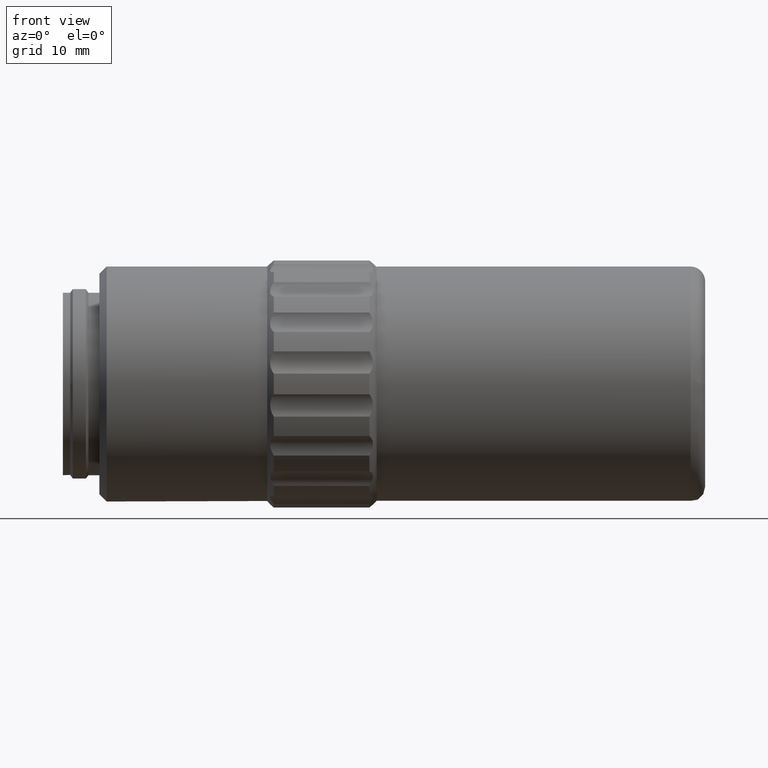
[diagram: clean part render]
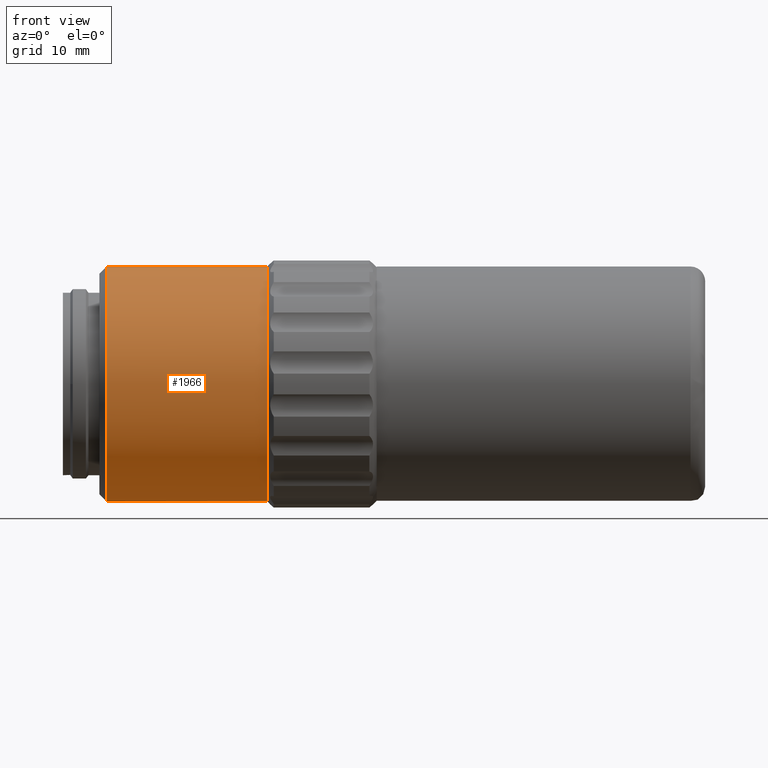
[diagram: same view with one face highlighted and labeled with its STEP entity id]
A machine part, front view. The second image highlights one B-rep face of the part: STEP entity #1966.
In plain terms, the highlighted cylindrical surface (bore or boss wall) has radius 16.1 mm, axis along (-1, 0, 0).
Its self-contained STEP definition (entity closure, byte-faithful):
#77 = VERTEX_POINT ( 'NONE', #719 ) ;
#359 = DIRECTION ( 'NONE',  ( 0.000000000000000000, 0.000000000000000000, 1.000000000000000000 ) ) ;
#527 = CARTESIAN_POINT ( 'NONE',  ( -3.553141965121202617, 46.02096199999999726, 0.000000000000000000 ) ) ;
#533 = CARTESIAN_POINT ( 'NONE',  ( -3.553141965121202617, 46.02096199999999726, 16.10000000000000142 ) ) ;
#582 = CARTESIAN_POINT ( 'NONE',  ( 18.44685803487879738, 46.02096199999999726, 0.000000000000000000 ) ) ;
#648 = DIRECTION ( 'NONE',  ( -1.000000000000000000, 0.000000000000000000, 0.000000000000000000 ) ) ;
#704 = ORIENTED_EDGE ( 'NONE', *, *, #1438, .F. ) ;
#713 = ORIENTED_EDGE ( 'NONE', *, *, #749, .T. ) ;
#719 = CARTESIAN_POINT ( 'NONE',  ( 18.44685803487879738, 29.92096199999999584, 0.000000000000000000 ) ) ;
#749 = EDGE_CURVE ( 'NONE', #870, #870, #1234, .T. ) ;
#853 = DIRECTION ( 'NONE',  ( 1.000000000000000000, -0.000000000000000000, -0.000000000000000000 ) ) ;
#870 = VERTEX_POINT ( 'NONE', #533 ) ;
#1047 = EDGE_LOOP ( 'NONE', ( #713 ) ) ;
#1054 = DIRECTION ( 'NONE',  ( 1.000000000000000000, 0.000000000000000000, 0.000000000000000000 ) ) ;
#1116 = FACE_OUTER_BOUND ( 'NONE', #1047, .T. ) ;
#1217 = EDGE_LOOP ( 'NONE', ( #704 ) ) ;
#1234 = CIRCLE ( 'NONE', #1499, 16.10000000000000142 ) ;
#1238 = CIRCLE ( 'NONE', #2093, 16.10000000000000142 ) ;
#1246 = DIRECTION ( 'NONE',  ( 0.000000000000000000, -1.000000000000000000, 0.000000000000000000 ) ) ;
#1438 = EDGE_CURVE ( 'NONE', #77, #77, #1238, .T. ) ;
#1455 = CYLINDRICAL_SURFACE ( 'NONE', #1807, 16.10000000000000142 ) ;
#1459 = FACE_OUTER_BOUND ( 'NONE', #1217, .T. ) ;
#1467 = CARTESIAN_POINT ( 'NONE',  ( 6.946858034878798271, 46.02096199999999726, 0.000000000000000000 ) ) ;
#1499 = AXIS2_PLACEMENT_3D ( 'NONE', #527, #853, #1503 ) ;
#1503 = DIRECTION ( 'NONE',  ( 0.000000000000000000, 0.000000000000000000, 1.000000000000000000 ) ) ;
#1807 = AXIS2_PLACEMENT_3D ( 'NONE', #1467, #648, #359 ) ;
#1966 = ADVANCED_FACE ( 'NONE', ( #1116, #1459 ), #1455, .T. ) ;
#2093 = AXIS2_PLACEMENT_3D ( 'NONE', #582, #1054, #1246 ) ;